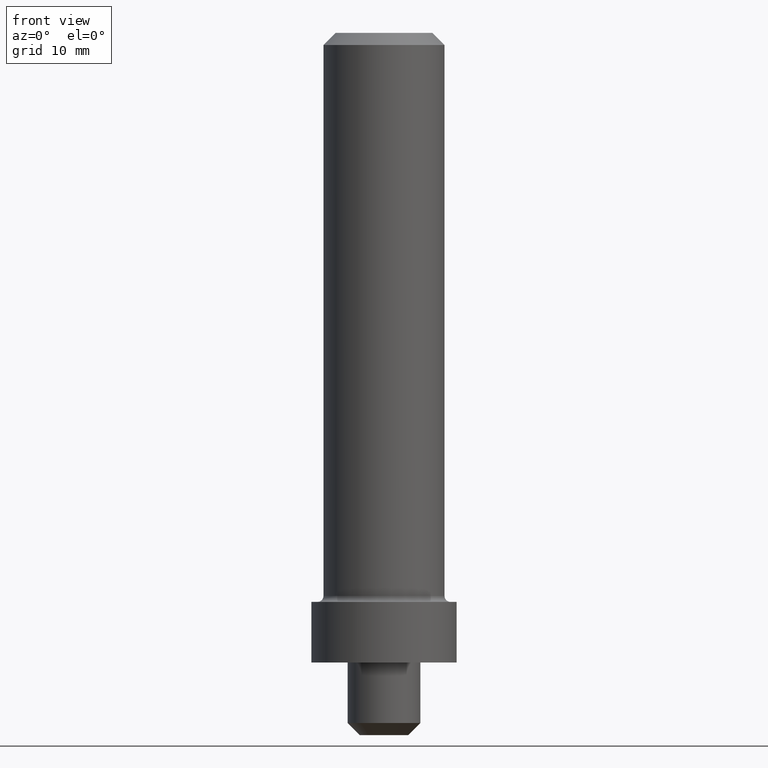
[diagram: clean part render]
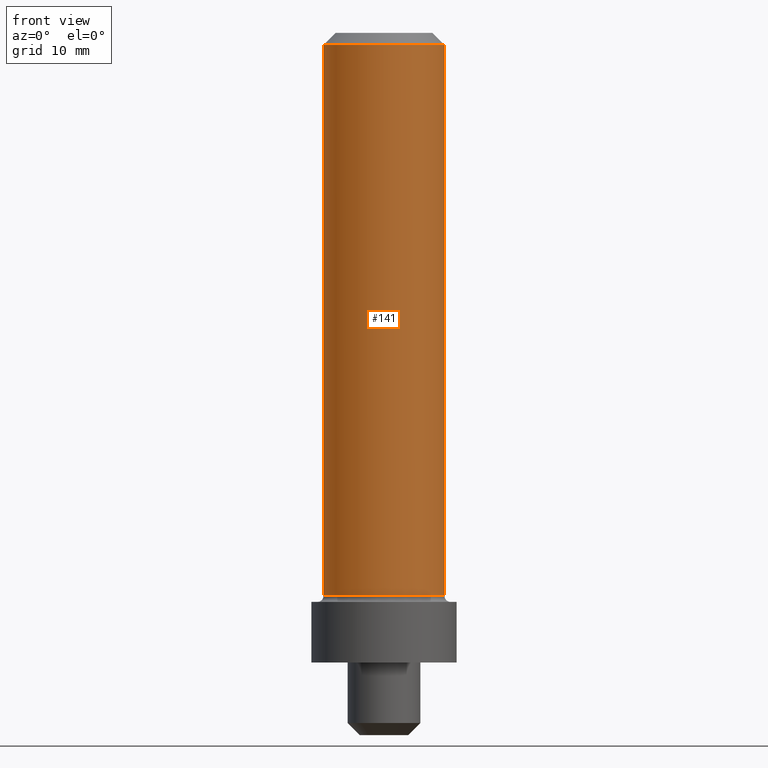
[diagram: same view with one face highlighted and labeled with its STEP entity id]
A machine part, front view. The second image highlights one B-rep face of the part: STEP entity #141.
In plain terms, the highlighted cylindrical surface (partial cylindrical patch) has radius 5 mm, axis along (-0, -0, 1).
Its self-contained STEP definition (entity closure, byte-faithful):
#125=VERTEX_POINT('NONE',#327);
#141=ADVANCED_FACE('NONE',(#346),#347,.T.);
#143=EDGE_CURVE('NONE',#269,#249,#349,.T.);
#229=EDGE_CURVE('NONE',#125,#249,#452,.T.);
#249=VERTEX_POINT('NONE',#475);
#251=EDGE_CURVE('NONE',#125,#289,#477,.T.);
#269=VERTEX_POINT('NONE',#495);
#277=EDGE_CURVE('NONE',#289,#269,#504,.T.);
#289=VERTEX_POINT('NONE',#517);
#327=CARTESIAN_POINT('',(-5.0,6.12303176911189E-016,5.5));
#346=FACE_OUTER_BOUND('',#574,.T.);
#347=CYLINDRICAL_SURFACE('',#575,5.0);
#349=CIRCLE('',#578,5.0);
#452=LINE('',#702,#703);
#475=CARTESIAN_POINT('',(-5.0,6.12303176911188E-016,51.0));
#477=CIRCLE('',#734,5.0);
#495=CARTESIAN_POINT('',(5.0,0.0,51.0));
#504=LINE('',#771,#772);
#517=CARTESIAN_POINT('',(5.0,0.0,5.5));
#574=EDGE_LOOP('',(#845,#846,#847,#848));
#575=AXIS2_PLACEMENT_3D('',#849,#850,#851);
#578=AXIS2_PLACEMENT_3D('',#852,#853,#854);
#702=CARTESIAN_POINT('',(-5.0,6.12303176911188E-016,44.3839792060492));
#703=VECTOR('',#1006,1000.0);
#734=AXIS2_PLACEMENT_3D('',#1036,#1037,#1038);
#771=CARTESIAN_POINT('',(5.0,0.0,44.3839792060492));
#772=VECTOR('',#1059,1000.0);
#845=ORIENTED_EDGE('',*,*,#229,.F.);
#846=ORIENTED_EDGE('',*,*,#251,.T.);
#847=ORIENTED_EDGE('',*,*,#277,.T.);
#848=ORIENTED_EDGE('',*,*,#143,.T.);
#849=CARTESIAN_POINT('',(0.0,0.0,44.3839792060492));
#850=DIRECTION('',(-0.0,-0.0,1.0));
#851=DIRECTION('',(1.0,0.0,0.0));
#852=CARTESIAN_POINT('',(0.0,0.0,51.0));
#853=DIRECTION('',(0.0,0.0,-1.0));
#854=DIRECTION('',(-1.0,0.0,0.0));
#1006=DIRECTION('',(-0.0,0.0,1.0));
#1036=CARTESIAN_POINT('',(0.0,0.0,5.5));
#1037=DIRECTION('',(0.0,0.0,1.0));
#1038=DIRECTION('',(1.0,0.0,0.0));
#1059=DIRECTION('',(-0.0,0.0,1.0));